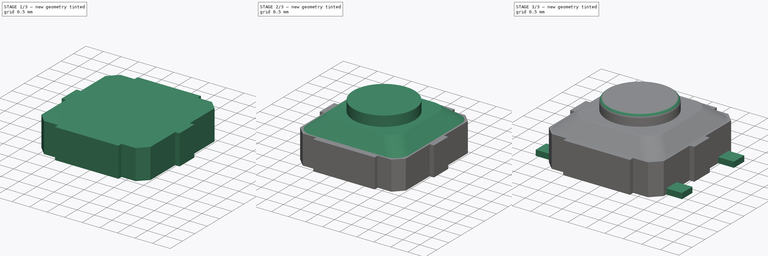
[diagram: build sequence overview — one tinted view per stage of 3, left to right]
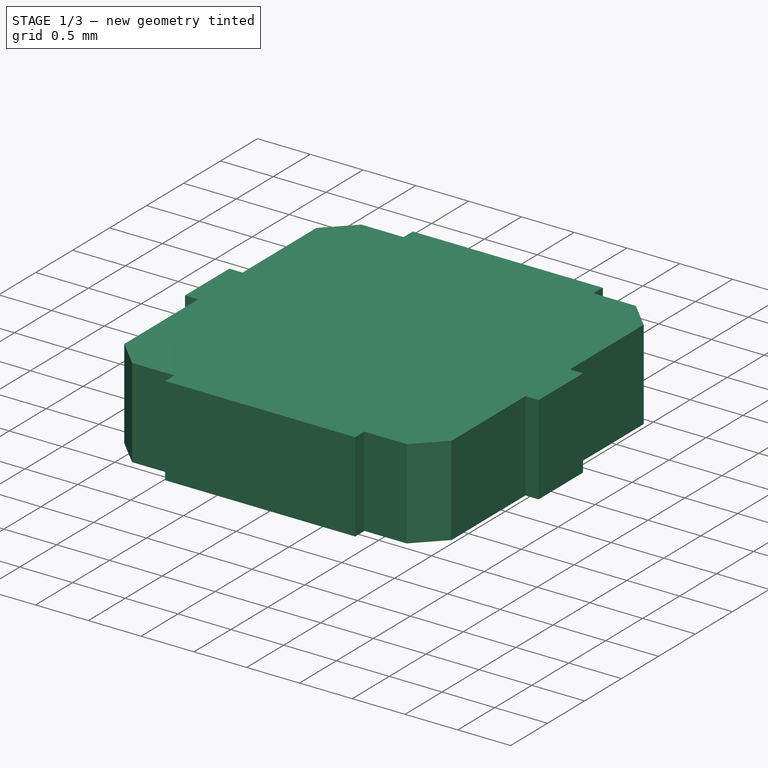
[diagram: stage 1 of 3 — iso view after this stage's code; geometry added in this stage tinted green]
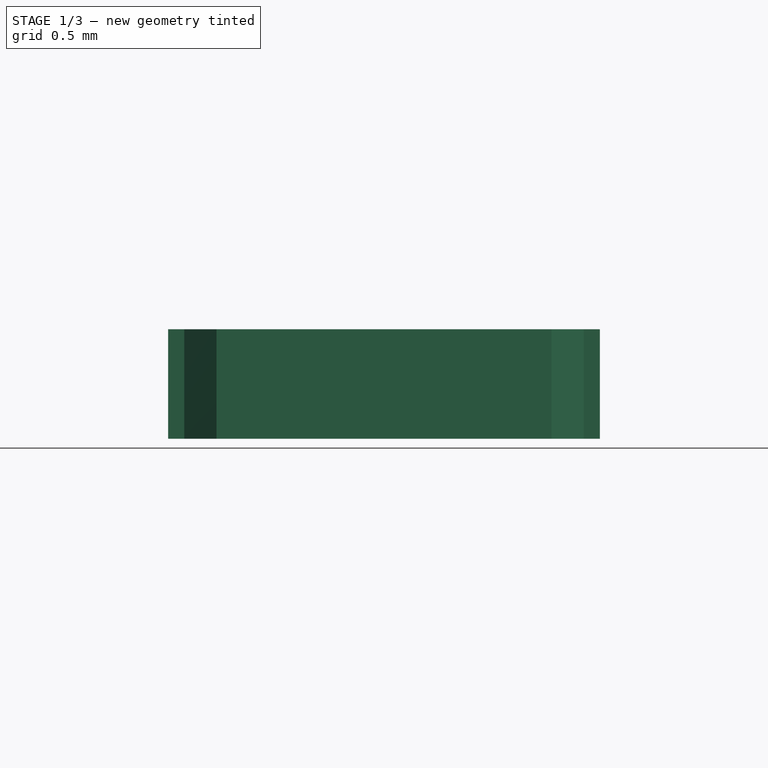
[diagram: stage 1 of 3 — front view after this stage's code; geometry added in this stage tinted green]
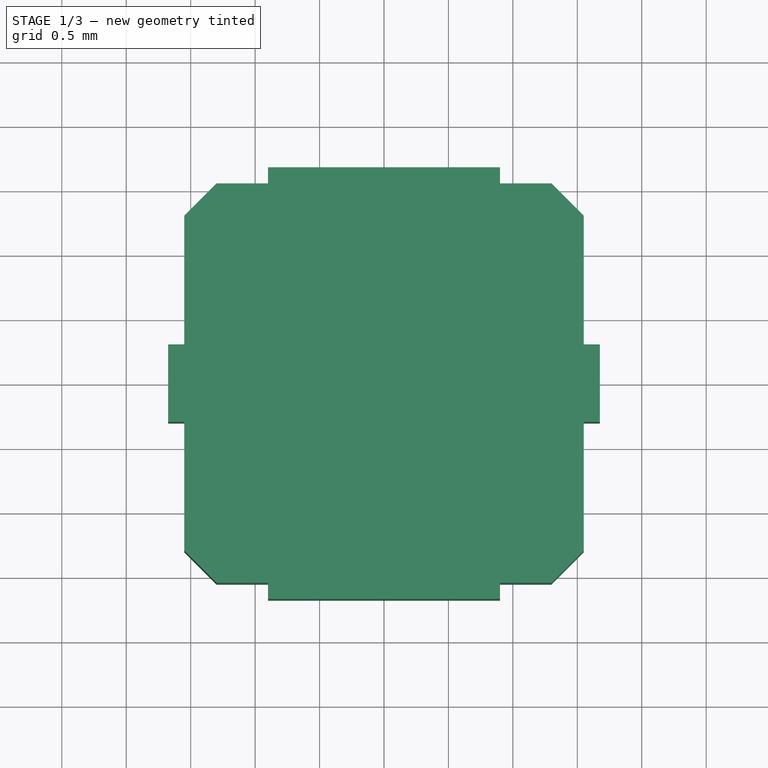
[diagram: stage 1 of 3 — top view after this stage's code; geometry added in this stage tinted green]
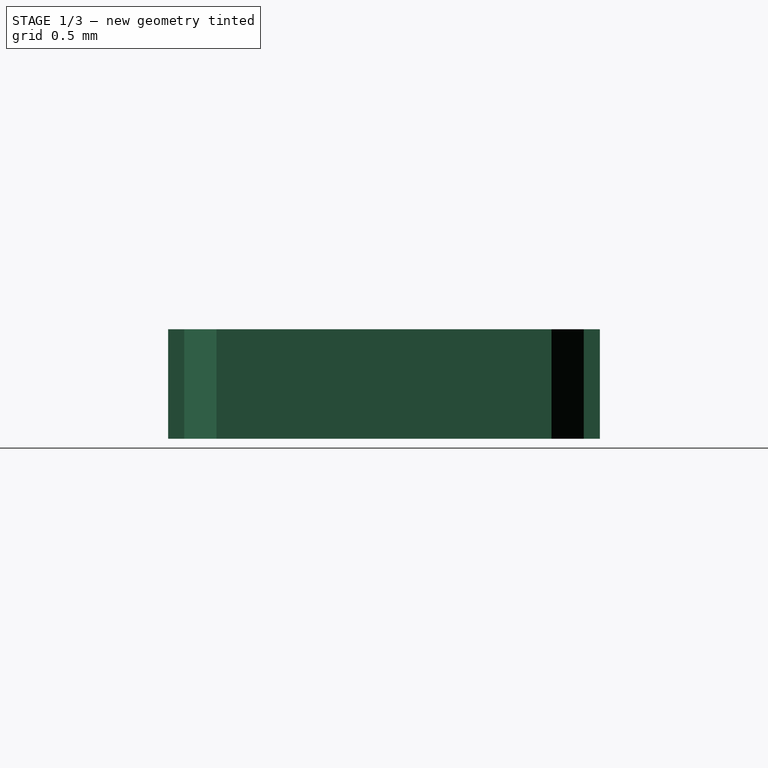
[diagram: stage 1 of 3 — right view after this stage's code; geometry added in this stage tinted green]
FCSTD DOCUMENT  (FreeCAD 1.0R39109 (Git))
Label: TS-1233
License: All rights reserved
LicenseURL: https://en.wikipedia.org/wiki/All_rights_reserved
objects: Sketcher::SketchObject×6, PartDesign::Pad×4, PartDesign::AdditiveLoft×1, PartDesign::Fillet×1, PartDesign::Body×1
note: 31 computed .brp shape members not serialized (recipe doc carries the construction recipe); baked Part::Feature solids carry a one-line shape summary decoded from their .brp

FEATURE [Sketcher::SketchObject] Sketch
  ArcFitTolerance = 1e-06
  AttachmentSupport = -> [XY_Plane]
  FullyConstrained = true
  MakeInternals = false
  MapMode = 5
  sketch-geometry (17):
    g0: LineSegment StartX=-1.3 StartY=-1.55 StartZ=0 EndX=1.3 EndY=-1.55 EndZ=0
    g1: LineSegment StartX=1.55 StartY=-1.3 StartZ=0 EndX=1.55 EndY=1.3 EndZ=0
    g2: LineSegment StartX=1.3 StartY=1.55 StartZ=0 EndX=-1.3 EndY=1.55 EndZ=0
    g3: LineSegment StartX=-1.55 StartY=1.3 StartZ=0 EndX=-1.55 EndY=-1.3 EndZ=0
    g4: GeomPoint [constr] X=0 Y=0 Z=0
    g5: ArcOfCircle [constr] CenterX=-1.3 CenterY=1.3 CenterZ=0 NormalX=0 NormalY=0 NormalZ=1 AngleXU=0 Radius=0.25 StartAngle=1.5708 EndAngle=3.14159
    g6: GeomPoint [constr] X=-1.55 Y=1.55 Z=0
    g7: LineSegment StartX=-1.3 StartY=1.55 StartZ=0 EndX=-1.55 EndY=1.3 EndZ=0
    g8: ArcOfCircle [constr] CenterX=-1.3 CenterY=-1.3 CenterZ=0 NormalX=0 NormalY=0 NormalZ=1 AngleXU=0 Radius=0.25 StartAngle=3.14159 EndAngle=4.71239
    g9: GeomPoint [constr] X=-1.55 Y=-1.55 Z=0
    g10: LineSegment StartX=-1.55 StartY=-1.3 StartZ=0 EndX=-1.3 EndY=-1.55 EndZ=0
    g11: ArcOfCircle [constr] CenterX=1.3 CenterY=-1.3 CenterZ=0 NormalX=0 NormalY=0 NormalZ=1 AngleXU=0 Radius=0.25 StartAngle=4.71239 EndAngle=6.28319
    g12: GeomPoint [constr] X=1.55 Y=-1.55 Z=0
    g13: LineSegment StartX=1.3 StartY=-1.55 StartZ=0 EndX=1.55 EndY=-1.3 EndZ=0
    g14: ArcOfCircle [constr] CenterX=1.3 CenterY=1.3 CenterZ=0 NormalX=0 NormalY=0 NormalZ=1 AngleXU=0 Radius=0.25 StartAngle=0 EndAngle=1.5708
    g15: GeomPoint [constr] X=1.55 Y=1.55 Z=0
    g16: LineSegment StartX=1.55 StartY=1.3 StartZ=0 EndX=1.3 EndY=1.55 EndZ=0
  constraints (36):
    c: Horizontal(g0)
    c: Horizontal(g2)
    c: Vertical(g1)
    c: Vertical(g3)
    c: Symmetric(g15,g9,g4)
    c: Coincident(g4,g-1)
    c: DistanceX(g6,g15) = 3.1
    c: DistanceY(g12,g15) = 3.1
    c: PointOnObject(g6,g3)
    c: PointOnObject(g6,g2)
    c: Tangent(g3,g5) = -1.5708
    c: Tangent(g2,g5) = -1.5708
    c: Coincident(g7,g3)
    c: Coincident(g7,g2)
    c: PointOnObject(g9,g3)
    c: PointOnObject(g9,g0)
    c: Tangent(g3,g8) = -1.5708
    c: Tangent(g0,g8) = -1.5708
    c: Coincident(g10,g3)
    c: Coincident(g10,g0)
    c: PointOnObject(g12,g0)
    c: PointOnObject(g12,g1)
    c: Tangent(g0,g11) = -1.5708
    c: Tangent(g1,g11) = -1.5708
    c: Coincident(g13,g0)
    c: Coincident(g13,g1)
    c: PointOnObject(g15,g1)
    c: PointOnObject(g15,g2)
    c: Tangent(g1,g14) = -1.5708
    c: Tangent(g2,g14) = -1.5708
    c: Coincident(g16,g1)
    c: Coincident(g16,g2)
    c: Equal(g3,g2)
    c: Equal(g5,g14)
    c: Equal(g14,g11)
    c: DistanceY(g7,g7) = 0.25
FEATURE [PartDesign::Pad] Pad
  Direction = (0,0,1)
  Length = 0.85
  Length2 = 10
  Profile = -> Sketch
  ReferenceAxis = -> Sketch [N_Axis]
  Refine = true
  Reversed = true
  Suppressed = false
  Type = 0
FEATURE [Sketcher::SketchObject] Sketch001
  ArcFitTolerance = 1e-06
  AttachmentSupport = -> [XY_Plane]
  FullyConstrained = true
  MakeInternals = false
  MapMode = 5
  sketch-geometry (14):
    g0: LineSegment StartX=-0.9 StartY=-1.675 StartZ=0 EndX=0.9 EndY=-1.675 EndZ=0
    g1: LineSegment StartX=0.9 StartY=-1.675 StartZ=0 EndX=0.9 EndY=-0.3 EndZ=0
    g2: LineSegment StartX=0.9 StartY=1.675 StartZ=0 EndX=-0.9 EndY=1.675 EndZ=0
    g3: LineSegment StartX=-0.9 StartY=1.675 StartZ=0 EndX=-0.9 EndY=0.3 EndZ=0
    g4: GeomPoint [constr] X=0 Y=0 Z=0
    g5: LineSegment StartX=-1.675 StartY=-0.3 StartZ=0 EndX=-0.9 EndY=-0.3 EndZ=0
    g6: LineSegment StartX=1.675 StartY=-0.3 StartZ=0 EndX=1.675 EndY=0.3 EndZ=0
    g7: LineSegment StartX=1.675 StartY=0.3 StartZ=0 EndX=0.9 EndY=0.3 EndZ=0
    g8: LineSegment StartX=-1.675 StartY=0.3 StartZ=0 EndX=-1.675 EndY=-0.3 EndZ=0
    g9: GeomPoint [constr] X=-3e-16 Y=0 Z=0
    g10: LineSegment StartX=-0.9 StartY=0.3 StartZ=0 EndX=-1.675 EndY=0.3 EndZ=0
    g11: LineSegment StartX=0.9 StartY=0.3 StartZ=0 EndX=0.9 EndY=1.675 EndZ=0
    g12: LineSegment StartX=-0.9 StartY=-0.3 StartZ=0 EndX=-0.9 EndY=-1.675 EndZ=0
    g13: LineSegment StartX=0.9 StartY=-0.3 StartZ=0 EndX=1.675 EndY=-0.3 EndZ=0
  constraints (37):
    c: Coincident(g0,g1)
    c: Coincident(g11,g2)
    c: Coincident(g2,g3)
    c: Coincident(g12,g0)
    c: Horizontal(g0)
    c: Vertical(g1)
    c: Vertical(g3)
    c: Symmetric(g2,g0,g4)
    c: Coincident(g4,g-1)
    c: Coincident(g13,g6)
    c: Coincident(g6,g7)
    c: Coincident(g10,g8)
    c: Coincident(g8,g5)
    c: Horizontal(g5)
    c: Horizontal(g7)
    c: Vertical(g8)
    c: Symmetric(g7,g5,g9)
    c: PointOnObject(g9,g-1)
    c: PointOnObject(g7,g11)
    c: PointOnObject(g1,g13)
    c: PointOnObject(g11,g7)
    c: Coincident(g3,g10)
    c: Coincident(g5,g12)
    c: PointOnObject(g13,g1)
    c: DistanceY(g6,g6) = 0.6
    c: DistanceX(g2,g2) = 1.8
    c: Symmetric(g2,g2,g-2)
    c: Vertical(g11)
    c: Vertical(g12)
    c: Horizontal(g13)
    c: Symmetric(g6,g6,g-1)
    c: PointOnObject(g1,g11)
    c: Equal(g8,g6)
    c: Horizontal(g10)
    c: DistanceY(g0,g2) = 3.35
    c: DistanceX(g8,g6) = 3.35
    c: Equal(g10,g7)
FEATURE [PartDesign::Pad] Pad001
  BaseFeature = -> Pad
  Direction = (0,0,1)
  Length = 0.85
  Length2 = 10
  Profile = -> Sketch001
  ReferenceAxis = -> Sketch001 [N_Axis]
  Refine = true
  Reversed = true
  Suppressed = false
  Type = 0
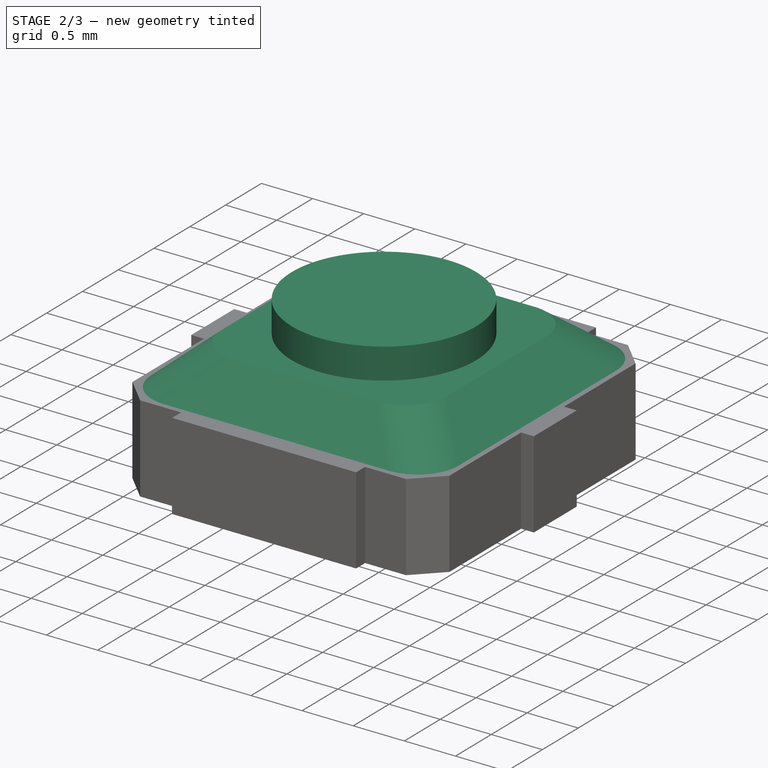
[diagram: stage 2 of 3 — iso view after this stage's code; geometry added in this stage tinted green]
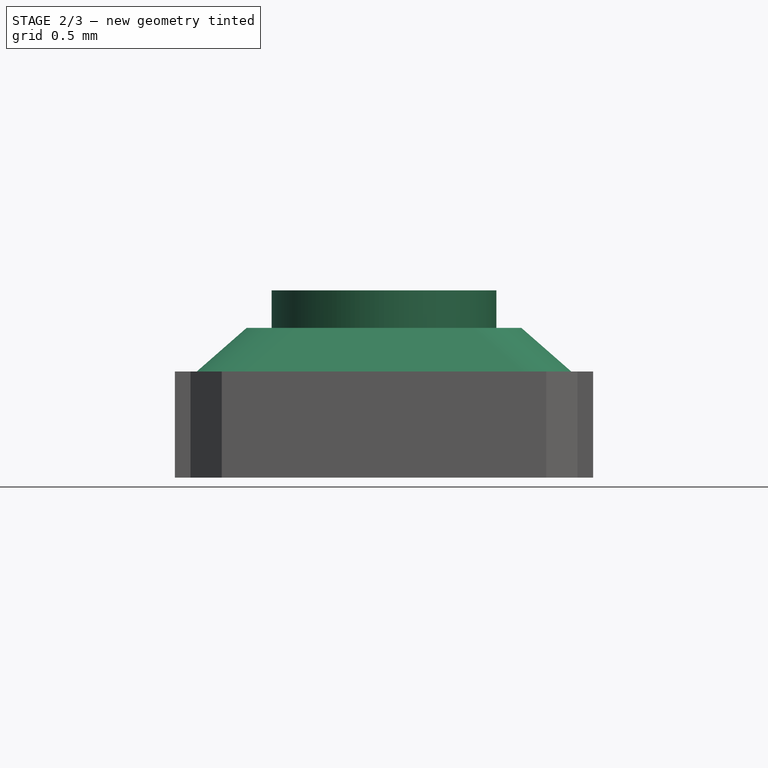
[diagram: stage 2 of 3 — front view after this stage's code; geometry added in this stage tinted green]
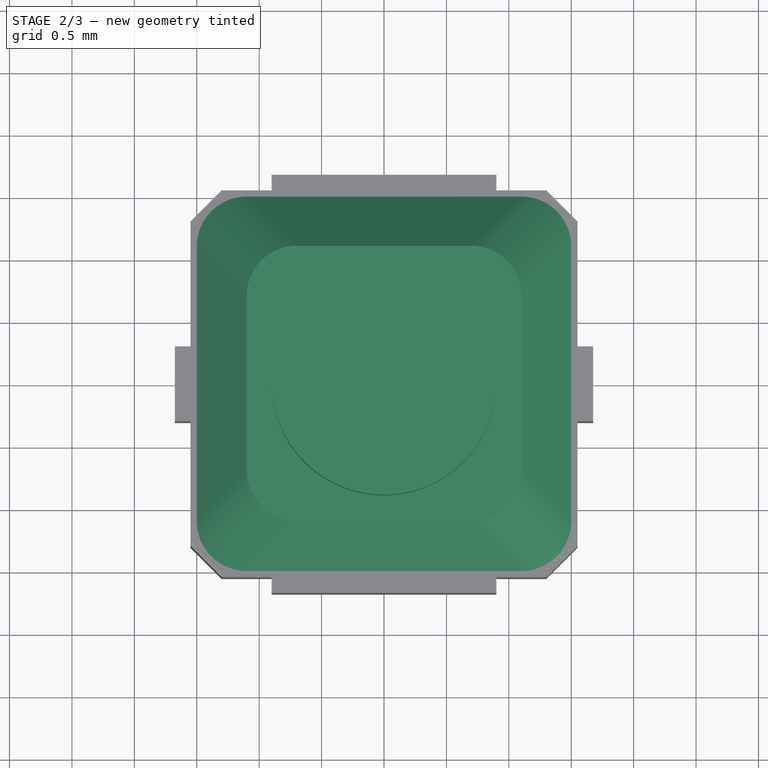
[diagram: stage 2 of 3 — top view after this stage's code; geometry added in this stage tinted green]
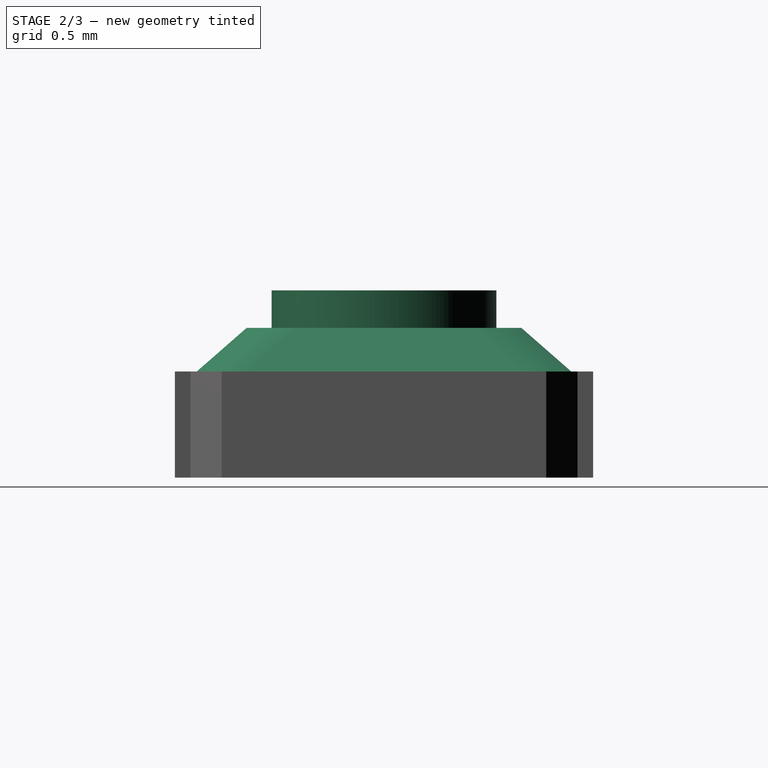
[diagram: stage 2 of 3 — right view after this stage's code; geometry added in this stage tinted green]
FEATURE [Sketcher::SketchObject] Sketch002
  ArcFitTolerance = 1e-06
  AttachmentSupport = -> [XY_Plane]
  FullyConstrained = true
  MakeInternals = false
  MapMode = 5
  sketch-geometry (10):
    g0: LineSegment StartX=-1.5 StartY=1.1 StartZ=0 EndX=-1.5 EndY=-1.1 EndZ=0
    g1: LineSegment StartX=-1.1 StartY=-1.5 StartZ=0 EndX=1.1 EndY=-1.5 EndZ=0
    g2: LineSegment StartX=1.5 StartY=-1.1 StartZ=0 EndX=1.5 EndY=1.1 EndZ=0
    g3: LineSegment StartX=1.1 StartY=1.5 StartZ=0 EndX=-1.1 EndY=1.5 EndZ=0
    g4: ArcOfCircle CenterX=-1.1 CenterY=1.1 CenterZ=0 NormalX=0 NormalY=0 NormalZ=1 AngleXU=0 Radius=0.4 StartAngle=1.5708 EndAngle=3.14159
    g5: ArcOfCircle CenterX=-1.1 CenterY=-1.1 CenterZ=0 NormalX=0 NormalY=0 NormalZ=1 AngleXU=0 Radius=0.4 StartAngle=3.14159 EndAngle=4.71239
    g6: ArcOfCircle CenterX=1.1 CenterY=-1.1 CenterZ=0 NormalX=0 NormalY=0 NormalZ=1 AngleXU=0 Radius=0.4 StartAngle=4.71239 EndAngle=6.28319
    g7: ArcOfCircle CenterX=1.1 CenterY=1.1 CenterZ=0 NormalX=0 NormalY=0 NormalZ=1 AngleXU=0 Radius=0.4 StartAngle=1e-16 EndAngle=1.5708
    g8: GeomPoint [constr] X=-1.5 Y=1.5 Z=0
    g9: GeomPoint [constr] X=1.5 Y=-1.5 Z=0
  constraints (22):
    c: Tangent(g0,g4) = -1.5708
    c: Tangent(g0,g5) = -1.5708
    c: Tangent(g1,g5) = -1.5708
    c: Tangent(g1,g6) = -1.5708
    c: Tangent(g2,g6) = -1.5708
    c: Tangent(g2,g7) = -1.5708
    c: Tangent(g3,g7) = -1.5708
    c: Tangent(g3,g4) = -1.5708
    c: Vertical(g0)
    c: Vertical(g2)
    c: Horizontal(g1)
    c: Equal(g4,g5)
    c: Equal(g5,g6)
    c: PointOnObject(g8,g0)
    c: PointOnObject(g8,g3)
    c: PointOnObject(g9,g1)
    c: PointOnObject(g9,g2)
    c: Symmetric(g3,g1,g-1)
    c: Symmetric(g0,g2,g-2)
    c: DistanceX(g0,g2) = 3
    c: DistanceY(g1,g3) = 3
    c: Radius(g4) = 0.4
FEATURE [Sketcher::SketchObject] Sketch003
  ArcFitTolerance = 1e-06
  AttachmentOffset = pos=(0,0,0.35) rot=(0,0,1;0rad)
  AttachmentSupport = -> [XY_Plane]
  FullyConstrained = true
  MakeInternals = false
  MapMode = 5
  Placement = pos=(0,0,0.35) rot=(0,0,1;0rad)
  expr: .AttachmentOffset.Base.z = 1.2 - 0.85
  sketch-geometry (10):
    g0: LineSegment StartX=-1.1 StartY=0.7 StartZ=0 EndX=-1.1 EndY=-0.7 EndZ=0
    g1: LineSegment StartX=-0.7 StartY=-1.1 StartZ=0 EndX=0.7 EndY=-1.1 EndZ=0
    g2: LineSegment StartX=1.1 StartY=-0.7 StartZ=0 EndX=1.1 EndY=0.7 EndZ=0
    g3: LineSegment StartX=0.7 StartY=1.1 StartZ=0 EndX=-0.7 EndY=1.1 EndZ=0
    g4: ArcOfCircle CenterX=-0.7 CenterY=0.7 CenterZ=0 NormalX=0 NormalY=0 NormalZ=1 AngleXU=0 Radius=0.4 StartAngle=1.5708 EndAngle=3.14159
    g5: ArcOfCircle CenterX=-0.7 CenterY=-0.7 CenterZ=0 NormalX=0 NormalY=0 NormalZ=1 AngleXU=0 Radius=0.4 StartAngle=3.14159 EndAngle=4.71239
    g6: ArcOfCircle CenterX=0.7 CenterY=-0.7 CenterZ=0 NormalX=0 NormalY=0 NormalZ=1 AngleXU=0 Radius=0.4 StartAngle=4.71239 EndAngle=6.28319
    g7: ArcOfCircle CenterX=0.7 CenterY=0.7 CenterZ=0 NormalX=0 NormalY=0 NormalZ=1 AngleXU=0 Radius=0.4 StartAngle=1e-16 EndAngle=1.5708
    g8: GeomPoint [constr] X=-1.1 Y=1.1 Z=0
    g9: GeomPoint [constr] X=1.1 Y=-1.1 Z=0
  constraints (22):
    c: Tangent(g0,g4) = -1.5708
    c: Tangent(g0,g5) = -1.5708
    c: Tangent(g1,g5) = -1.5708
    c: Tangent(g1,g6) = -1.5708
    c: Tangent(g2,g6) = -1.5708
    c: Tangent(g2,g7) = -1.5708
    c: Tangent(g3,g7) = -1.5708
    c: Tangent(g3,g4) = -1.5708
    c: Vertical(g0)
    c: Vertical(g2)
    c: Horizontal(g1)
    c: Horizontal(g3)
    c: Equal(g4,g5)
    c: PointOnObject(g8,g0)
    c: PointOnObject(g8,g3)
    c: PointOnObject(g9,g1)
    c: PointOnObject(g9,g2)
    c: Radius(g4) = 0.4
    c: DistanceX(g0,g2) = 2.2
    c: Symmetric(g0,g2,g-2)
    c: Symmetric(g3,g1,g-1)
    c: Equal(g3,g2)
FEATURE [PartDesign::AdditiveLoft] AdditiveLoft
  BaseFeature = -> Pad001
  Closed = false
  Profile = -> Sketch003
  Refine = true
  Ruled = false
  Sections = -> [Sketch002]
  Suppressed = false
FEATURE [Sketcher::SketchObject] Sketch004
  ArcFitTolerance = 1e-06
  AttachmentOffset = pos=(0,0,0.35) rot=(0,0,1;0rad)
  AttachmentSupport = -> [XY_Plane]
  FullyConstrained = true
  MakeInternals = false
  MapMode = 5
  Placement = pos=(0,0,0.35) rot=(0,0,1;0rad)
  expr: .AttachmentOffset.Base.z = 1.2 - 0.85
  sketch-geometry (1):
    g0: Circle CenterX=0 CenterY=0 CenterZ=0 NormalX=0 NormalY=0 NormalZ=1 AngleXU=0 Radius=0.9
  constraints (2):
    c: Coincident(g0,g-1)
    c: Diameter(g0) = 1.8
FEATURE [PartDesign::Pad] Pad002
  BaseFeature = -> AdditiveLoft
  Direction = (0,0,1)
  Length = 0.3
  Length2 = 10
  Profile = -> Sketch004
  ReferenceAxis = -> Sketch004 [N_Axis]
  Refine = true
  Suppressed = false
  Type = 0
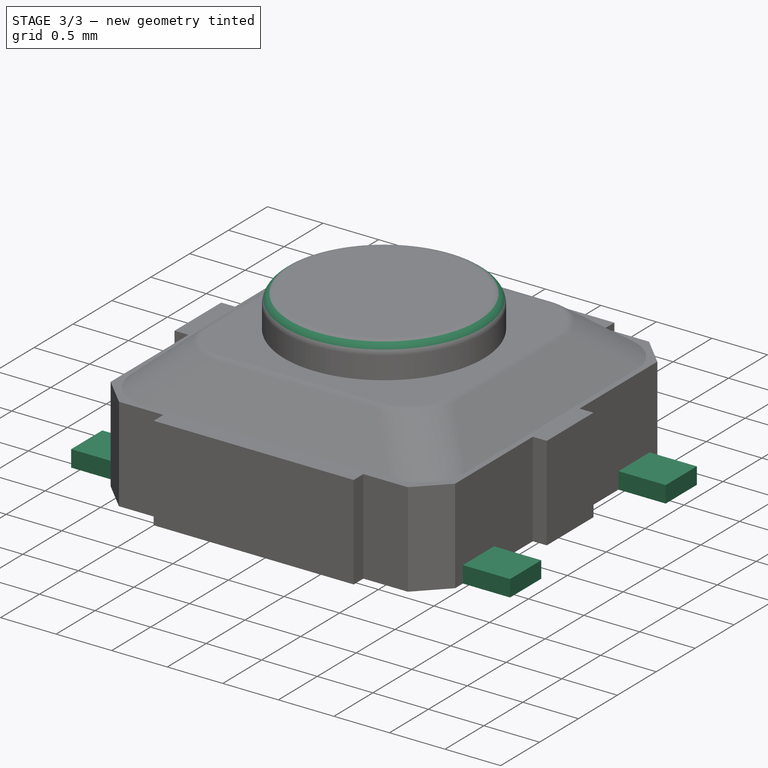
[diagram: stage 3 of 3 — iso view after this stage's code; geometry added in this stage tinted green]
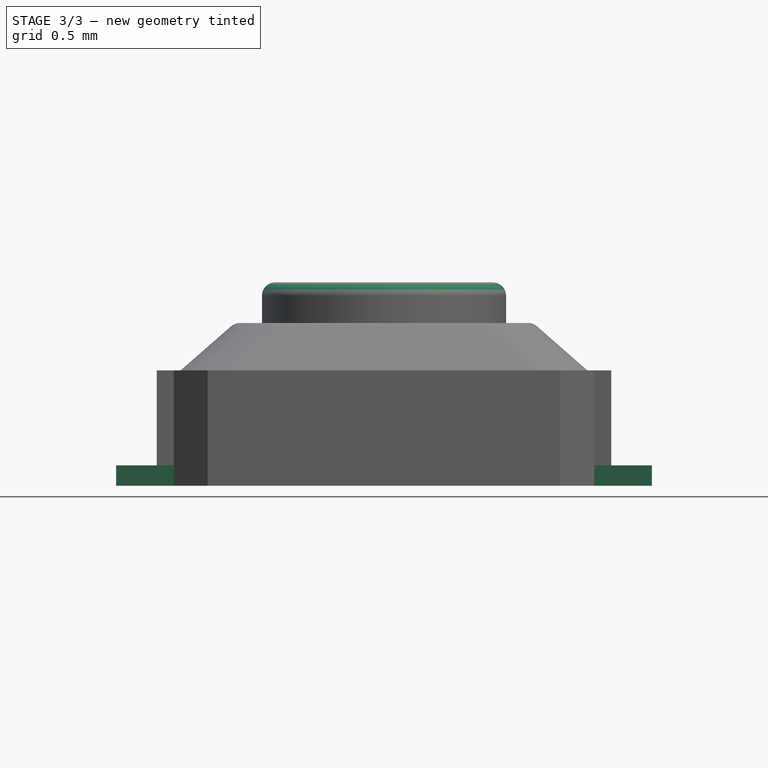
[diagram: stage 3 of 3 — front view after this stage's code; geometry added in this stage tinted green]
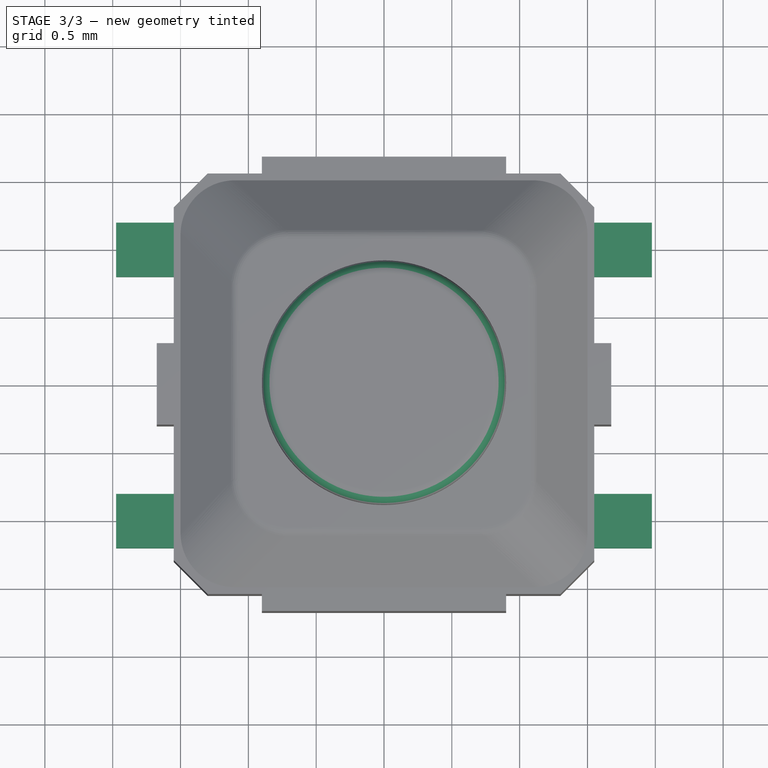
[diagram: stage 3 of 3 — top view after this stage's code; geometry added in this stage tinted green]
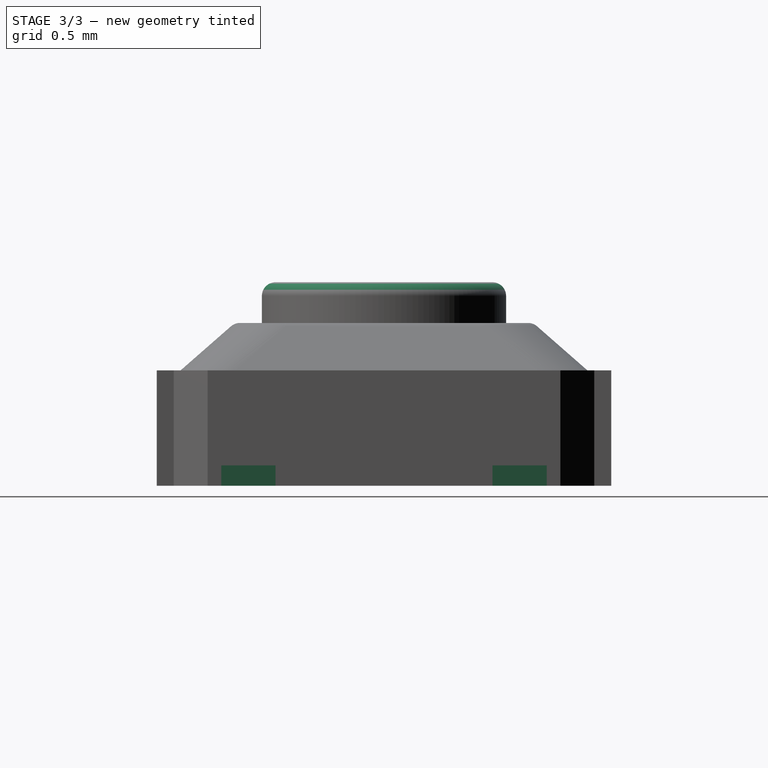
[diagram: stage 3 of 3 — right view after this stage's code; geometry added in this stage tinted green]
FEATURE [PartDesign::Fillet] Fillet
  Base = -> Pad002 [Edge99,Edge86]
  BaseFeature = -> Pad002
  Radius = 0.1
  Refine = true
  SupportTransform = false
  Suppressed = false
  UseAllEdges = false
FEATURE [Sketcher::SketchObject] Sketch005
  ArcFitTolerance = 1e-06
  AttachmentOffset = pos=(0,0,-0.85) rot=(0,0,1;0rad)
  AttachmentSupport = -> [XY_Plane]
  FullyConstrained = true
  MakeInternals = false
  MapMode = 5
  Placement = pos=(0,0,-0.85) rot=(0,0,1;0rad)
  expr: .AttachmentOffset.Base.z = -0.85
  sketch-geometry (16):
    g0: LineSegment StartX=-1.975 StartY=1.2 StartZ=0 EndX=-1.975 EndY=0.8 EndZ=0
    g1: LineSegment StartX=-1.975 StartY=0.8 StartZ=0 EndX=-1.25 EndY=0.8 EndZ=0
    g2: LineSegment StartX=-1.25 StartY=0.8 StartZ=0 EndX=-1.25 EndY=1.2 EndZ=0
    g3: LineSegment StartX=-1.25 StartY=1.2 StartZ=0 EndX=-1.975 EndY=1.2 EndZ=0
    g4: LineSegment StartX=-1.975 StartY=-0.8 StartZ=0 EndX=-1.975 EndY=-1.2 EndZ=0
    g5: LineSegment StartX=-1.975 StartY=-1.2 StartZ=0 EndX=-1.25 EndY=-1.2 EndZ=0
    g6: LineSegment StartX=-1.25 StartY=-1.2 StartZ=0 EndX=-1.25 EndY=-0.8 EndZ=0
    g7: LineSegment StartX=-1.25 StartY=-0.8 StartZ=0 EndX=-1.975 EndY=-0.8 EndZ=0
    g8: LineSegment StartX=1.25 StartY=-0.8 StartZ=0 EndX=1.25 EndY=-1.2 EndZ=0
    g9: LineSegment StartX=1.25 StartY=-1.2 StartZ=0 EndX=1.975 EndY=-1.2 EndZ=0
    g10: LineSegment StartX=1.975 StartY=-1.2 StartZ=0 EndX=1.975 EndY=-0.8 EndZ=0
    g11: LineSegment StartX=1.975 StartY=-0.8 StartZ=0 EndX=1.25 EndY=-0.8 EndZ=0
    g12: LineSegment StartX=1.25 StartY=1.2 StartZ=0 EndX=1.25 EndY=0.8 EndZ=0
    g13: LineSegment StartX=1.25 StartY=0.8 StartZ=0 EndX=1.975 EndY=0.8 EndZ=0
    g14: LineSegment StartX=1.975 StartY=0.8 StartZ=0 EndX=1.975 EndY=1.2 EndZ=0
    g15: LineSegment StartX=1.975 StartY=1.2 StartZ=0 EndX=1.25 EndY=1.2 EndZ=0
  constraints (46):
    c: Coincident(g0,g1)
    c: Coincident(g1,g2)
    c: Coincident(g2,g3)
    c: Coincident(g3,g0)
    c: Vertical(g0)
    c: Vertical(g2)
    c: Horizontal(g1)
    c: Horizontal(g3)
    c: Coincident(g4,g5)
    c: Coincident(g5,g6)
    c: Coincident(g6,g7)
    c: Coincident(g7,g4)
    c: Vertical(g4)
    c: Vertical(g6)
    c: Horizontal(g5)
    c: Horizontal(g7)
    c: Coincident(g8,g9)
    c: Coincident(g9,g10)
    c: Coincident(g10,g11)
    c: Coincident(g11,g8)
    c: Vertical(g8)
    c: Vertical(g10)
    c: Horizontal(g9)
    c: Horizontal(g11)
    c: Coincident(g12,g13)
    c: Coincident(g13,g14)
    c: Coincident(g14,g15)
    c: Coincident(g15,g12)
    c: Vertical(g12)
    c: Vertical(g14)
    c: Horizontal(g13)
    c: Horizontal(g15)
    c: Equal(g3,g15)
    c: Equal(g15,g11)
    c: Equal(g11,g7)
    c: Symmetric(g2,g12,g-2)
    c: Symmetric(g1,g6,g-1)
    c: Equal(g2,g6)
    c: Equal(g6,g8)
    c: Equal(g8,g12)
    c: PointOnObject(g12,g8)
    c: PointOnObject(g6,g11)
    c: DistanceX(g2,g12) = 2.5
    c: DistanceX(g0,g14) = 3.95
    c: DistanceY(g9,g13) = 2
    c: DistanceY(g14,g14) = 0.4
FEATURE [PartDesign::Pad] Pad003
  BaseFeature = -> Fillet
  Direction = (0,0,1)
  Length = 0.15
  Length2 = 10
  Profile = -> Sketch005
  ReferenceAxis = -> Sketch005 [N_Axis]
  Refine = true
  Suppressed = false
  Type = 0
FEATURE [PartDesign::Body] Body
  AllowCompound = false
  Group = -> [Sketch,Pad,Sketch001,Pad001,Sketch002,Sketch003,AdditiveLoft,Sketch004,Pad002,Fillet,Sketch005,Pad003]
  Origin = -> Origin
  Tip = -> Pad003
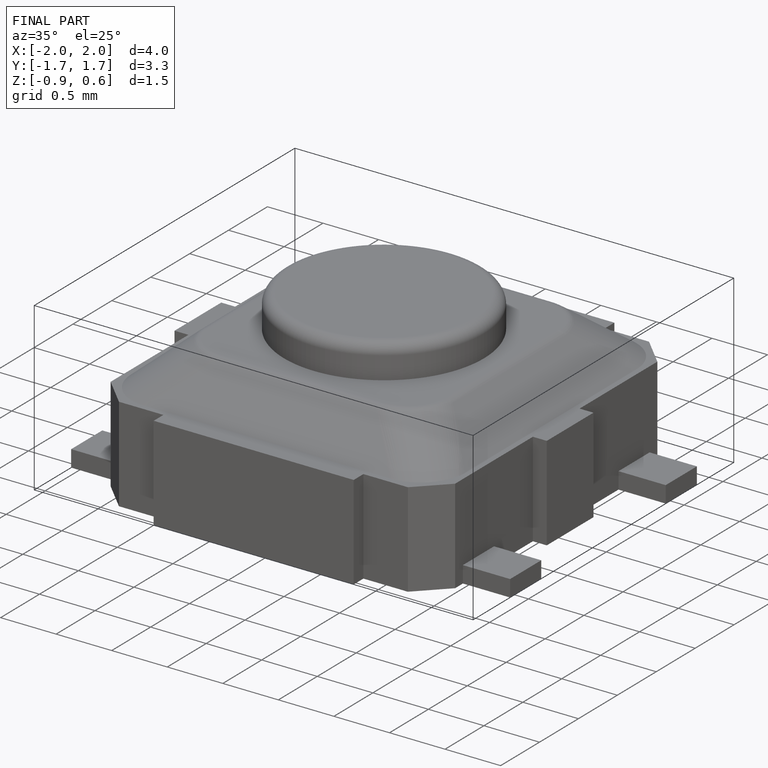
[diagram: finished part — iso view with bounding-box wireframe]
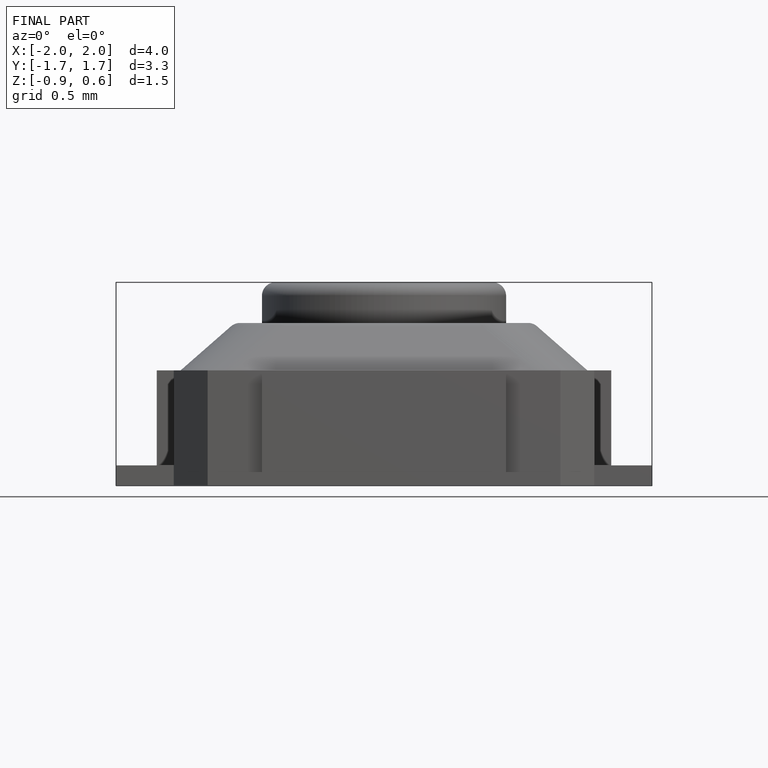
[diagram: finished part — front view with bounding-box wireframe]
